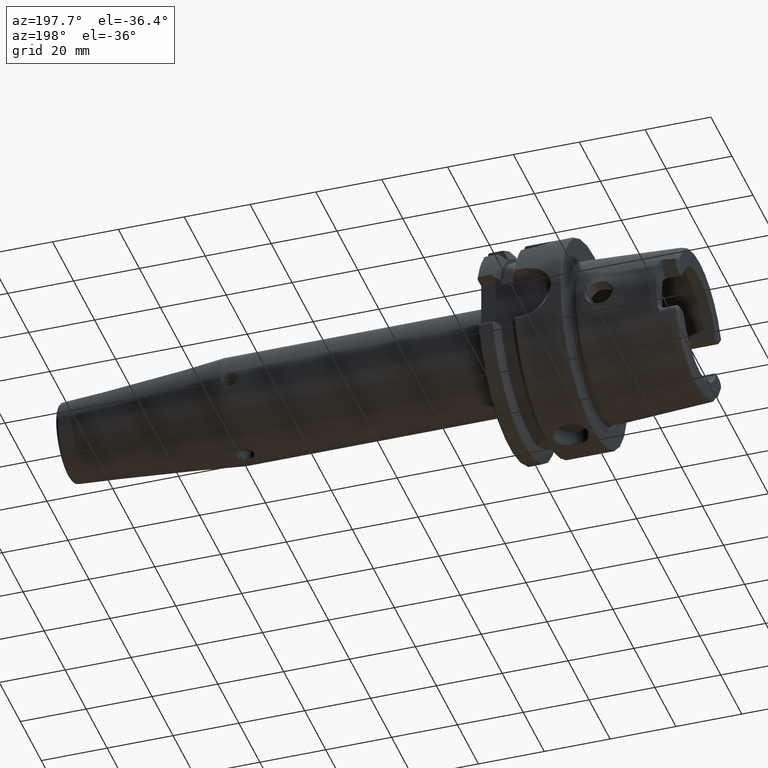
[diagram: clean part render]
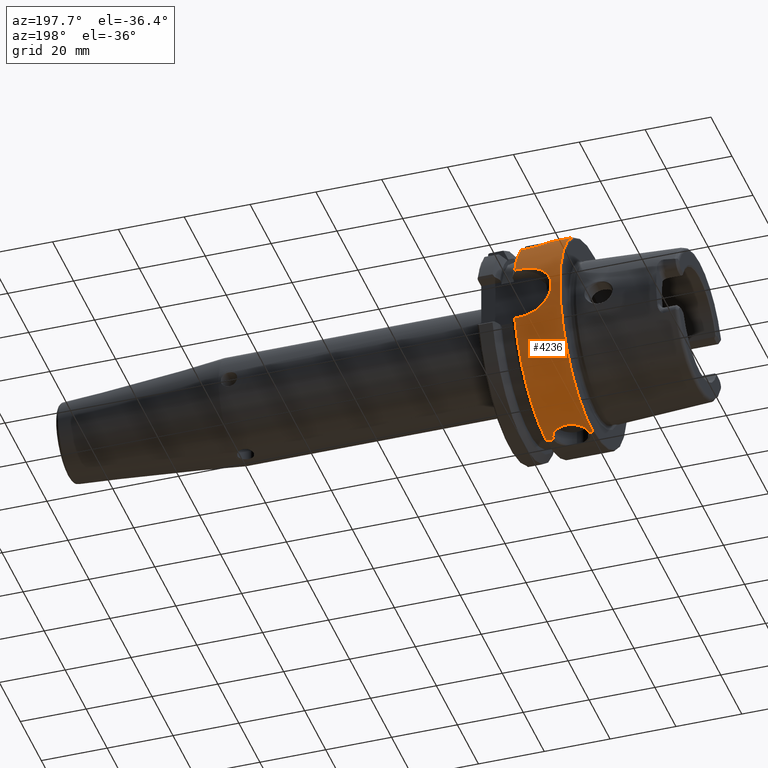
[diagram: same view with one face highlighted and labeled with its STEP entity id]
A machine part, auxiliary view. The second image highlights one B-rep face of the part: STEP entity #4236.
In plain terms, the highlighted cylindrical surface (partial cylindrical patch) has radius 31.5 mm, axis along (1, 0, 0).
Its self-contained STEP definition (entity closure, byte-faithful):
#913=DIRECTION('',(-1.E0,-1.152682623977E-12,0.E0));
#914=VECTOR('',#913,1.412250090457E1);
#915=CARTESIAN_POINT('',(1.462250090457E1,0.E0,3.15E1));
#916=LINE('',#915,#914);
#972=DIRECTION('',(-1.E0,0.E0,0.E0));
#973=VECTOR('',#972,2.122500904567E0);
#974=CARTESIAN_POINT('',(1.462250090457E1,0.E0,-3.15E1));
#975=LINE('',#974,#973);
#996=DIRECTION('',(-1.E0,-3.500340280064E-12,0.E0));
#997=VECTOR('',#996,1.E0);
#998=CARTESIAN_POINT('',(1.5E0,0.E0,-3.15E1));
#999=LINE('',#998,#997);
#1013=CARTESIAN_POINT('',(5.E-1,0.E0,0.E0));
#1014=DIRECTION('',(-1.E0,0.E0,0.E0));
#1015=DIRECTION('',(0.E0,0.E0,1.E0));
#1016=AXIS2_PLACEMENT_3D('',#1013,#1014,#1015);
#1018=CARTESIAN_POINT('',(1.25E1,0.E0,-3.15E1));
#1019=CARTESIAN_POINT('',(1.25E1,3.591179016958E-1,-3.15E1));
#1020=CARTESIAN_POINT('',(1.241877060514E1,1.049176716839E0,-3.148780969961E1));
#1021=CARTESIAN_POINT('',(1.208888151745E1,2.007789554012E0,-3.144033464909E1));
#1022=CARTESIAN_POINT('',(1.158303499725E1,2.863034778919E0,-3.137310892711E1));
#1023=CARTESIAN_POINT('',(1.090471174494E1,3.623449915998E0,-3.129357789396E1));
#1024=CARTESIAN_POINT('',(1.006459553458E1,4.261252464667E0,-3.121215533395E1));
#1025=CARTESIAN_POINT('',(9.088026015445E0,4.740243014212E0,-3.114207085875E1));
#1026=CARTESIAN_POINT('',(8.055144265708E0,5.024239826024E0,-3.109689332850E1));
#1027=CARTESIAN_POINT('',(6.991255526220E0,5.118492193282E0,-3.108133183436E1));
#1028=CARTESIAN_POINT('',(5.929304176130E0,5.021338939589E0,-3.109736870211E1));
#1029=CARTESIAN_POINT('',(4.897654838810E0,4.734729497616E0,-3.114291627253E1));
#1030=CARTESIAN_POINT('',(3.923322314250E0,4.253904907756E0,-3.121317796639E1));
#1031=CARTESIAN_POINT('',(3.081999010349E0,3.611475324829E0,-3.129499592086E1));
#1032=CARTESIAN_POINT('',(2.405524185626E0,2.847462453288E0,-3.137455446046E1));
#1033=CARTESIAN_POINT('',(1.903178736620E0,1.990202842849E0,-3.144144823364E1));
#1034=CARTESIAN_POINT('',(1.578888425808E0,1.035924841317E0,-3.148816306394E1));
#1035=CARTESIAN_POINT('',(1.5E0,3.538898695661E-1,-3.15E1));
#1036=CARTESIAN_POINT('',(1.5E0,0.E0,-3.15E1));
#1038=CARTESIAN_POINT('',(1.462250090457E1,0.E0,0.E0));
#1039=DIRECTION('',(1.E0,0.E0,0.E0));
#1040=DIRECTION('',(0.E0,0.E0,-1.E0));
#1041=AXIS2_PLACEMENT_3D('',#1038,#1039,#1040);
#1043=DIRECTION('',(1.E0,0.E0,0.E0));
#1044=VECTOR('',#1043,1.622500904567E0);
#1045=CARTESIAN_POINT('',(1.3E1,3.030257052423E1,-8.602570524226E0));
#1046=LINE('',#1045,#1044);
#1047=CARTESIAN_POINT('',(1.3E1,3.030257052423E1,-8.602570524226E0));
#1048=CARTESIAN_POINT('',(1.235541835287E1,3.030257052423E1,-8.602570524226E0));
#1049=CARTESIAN_POINT('',(1.109372968304E1,3.033423153458E1,-8.492196080456E0));
#1050=CARTESIAN_POINT('',(9.248264611222E0,3.046933517118E1,-8.000909647176E0));
#1051=CARTESIAN_POINT('',(7.555884268441E0,3.066964465669E1,-7.205952655409E0));
#1052=CARTESIAN_POINT('',(6.088763746981E0,3.090017764345E1,-6.155508171550E0));
#1053=CARTESIAN_POINT('',(4.907613818030E0,3.112281076593E1,-4.919449967846E0));
#1054=CARTESIAN_POINT('',(4.035296228860E0,3.130752418742E1,-3.569140413675E0));
#1055=CARTESIAN_POINT('',(3.467126615443E0,3.143679507039E1,-2.158791178254E0));
#1056=CARTESIAN_POINT('',(3.188348549717E0,3.150274417315E1,
-7.219689524247E-1));
#1057=CARTESIAN_POINT('',(3.188351309952E0,3.150274350794E1,7.219960352426E-1));
#1058=CARTESIAN_POINT('',(3.467133324851E0,3.143679352027E1,2.158810680109E0));
#1059=CARTESIAN_POINT('',(4.035299491244E0,3.130752347964E1,3.569145798460E0));
#1060=CARTESIAN_POINT('',(4.907619317801E0,3.112280964165E1,4.919457341111E0));
#1061=CARTESIAN_POINT('',(6.088770538561E0,3.090017648968E1,6.155513669787E0));
#1062=CARTESIAN_POINT('',(7.555887404237E0,3.066964426780E1,7.205954206590E0));
#1063=CARTESIAN_POINT('',(9.248266760131E0,3.046933495101E1,8.000910488809E0));
#1064=CARTESIAN_POINT('',(1.109373293521E1,3.033423138205E1,8.492196614850E0));
#1065=CARTESIAN_POINT('',(1.235541965801E1,3.030257052423E1,8.602570524226E0));
#1066=CARTESIAN_POINT('',(1.3E1,3.030257052423E1,8.602570524226E0));
#1068=DIRECTION('',(1.E0,0.E0,0.E0));
#1069=VECTOR('',#1068,1.622500904567E0);
#1070=CARTESIAN_POINT('',(1.3E1,3.030257052423E1,8.602570524226E0));
#1071=LINE('',#1070,#1069);
#1072=CARTESIAN_POINT('',(1.462250090457E1,0.E0,0.E0));
#1073=DIRECTION('',(1.E0,0.E0,0.E0));
#1074=DIRECTION('',(0.E0,9.619863658485E-1,2.730974769596E-1));
#1075=AXIS2_PLACEMENT_3D('',#1072,#1073,#1074);
#1077=DIRECTION('',(1.E0,0.E0,0.E0));
#1078=VECTOR('',#1077,1.622500904567E0);
#1079=CARTESIAN_POINT('',(1.3E1,2.433618704728E1,2.E1));
#1080=LINE('',#1079,#1078);
#1081=CARTESIAN_POINT('',(5.888286096344E0,2.E1,2.433618704728E1));
#1082=CARTESIAN_POINT('',(5.979841110901E0,2.021624479285E1,2.415847244274E1));
#1083=CARTESIAN_POINT('',(6.178964055433E0,2.063505528873E1,2.380463264103E1));
#1084=CARTESIAN_POINT('',(6.529290349012E0,2.122336114799E1,2.328123619400E1));
#1085=CARTESIAN_POINT('',(6.934185786704E0,2.177041926319E1,2.277004743860E1));
#1086=CARTESIAN_POINT('',(7.395470581921E0,2.227363444044E1,2.227755184076E1));
#1087=CARTESIAN_POINT('',(7.915511267172E0,2.273117164906E1,2.180996325233E1));
#1088=CARTESIAN_POINT('',(8.494651142790E0,2.313957745525E1,2.137559509570E1));
#1089=CARTESIAN_POINT('',(9.133373456560E0,2.349590004479E1,2.098269866103E1));
#1090=CARTESIAN_POINT('',(9.827602999986E0,2.379530983774E1,2.064193255373E1));
#1091=CARTESIAN_POINT('',(1.057250362730E1,2.403390563889E1,2.036307977068E1));
#1092=CARTESIAN_POINT('',(1.135757184338E1,2.420737036833E1,2.015610491514E1));
#1093=CARTESIAN_POINT('',(1.217313527813E1,2.431273139834E1,2.002859294578E1));
#1094=CARTESIAN_POINT('',(1.272260838370E1,2.433618704728E1,2.E1));
#1095=CARTESIAN_POINT('',(1.3E1,2.433618704728E1,2.E1));
#1097=DIRECTION('',(1.E0,0.E0,0.E0));
#1098=VECTOR('',#1097,8.734214808223E0);
#1099=CARTESIAN_POINT('',(5.888286096344E0,2.E1,2.433618704728E1));
#1100=LINE('',#1099,#1098);
#1101=CARTESIAN_POINT('',(1.462250090457E1,0.E0,0.E0));
#1102=DIRECTION('',(1.E0,0.E0,0.E0));
#1103=DIRECTION('',(0.E0,6.349206349206E-1,7.725773665802E-1));
#1104=AXIS2_PLACEMENT_3D('',#1101,#1102,#1103);
#2831=CARTESIAN_POINT('',(5.888286096344E0,2.E1,2.433618704728E1));
#2832=CARTESIAN_POINT('',(1.462250090457E1,2.E1,2.433618704728E1));
#2833=VERTEX_POINT('',#2831);
#2834=VERTEX_POINT('',#2832);
#2835=CARTESIAN_POINT('',(1.3E1,2.433618704728E1,2.E1));
#2836=CARTESIAN_POINT('',(1.462250090457E1,2.433618704728E1,2.E1));
#2837=VERTEX_POINT('',#2835);
#2838=VERTEX_POINT('',#2836);
#2851=CARTESIAN_POINT('',(1.462250090457E1,0.E0,3.15E1));
#2852=VERTEX_POINT('',#2851);
#2994=VERTEX_POINT('',#1018);
#2995=VERTEX_POINT('',#1036);
#3004=CARTESIAN_POINT('',(1.462250090457E1,0.E0,-3.15E1));
#3005=VERTEX_POINT('',#3004);
#3051=CARTESIAN_POINT('',(1.3E1,3.030257052423E1,8.602570524226E0));
#3052=CARTESIAN_POINT('',(1.462250090457E1,3.030257052423E1,8.602570524226E0));
#3053=VERTEX_POINT('',#3051);
#3054=VERTEX_POINT('',#3052);
#3055=VERTEX_POINT('',#1047);
#3056=CARTESIAN_POINT('',(1.462250090457E1,3.030257052423E1,-8.602570524226E0));
#3057=VERTEX_POINT('',#3056);
#3076=CARTESIAN_POINT('',(5.E-1,0.E0,3.15E1));
#3077=CARTESIAN_POINT('',(5.E-1,0.E0,-3.15E1));
#3078=VERTEX_POINT('',#3076);
#3079=VERTEX_POINT('',#3077);
#4205=CARTESIAN_POINT('',(0.E0,0.E0,0.E0));
#4206=DIRECTION('',(1.E0,0.E0,0.E0));
#4207=DIRECTION('',(0.E0,0.E0,1.E0));
#4208=AXIS2_PLACEMENT_3D('',#4205,#4206,#4207);
#4209=CYLINDRICAL_SURFACE('',#4208,3.15E1);
#4211=ORIENTED_EDGE('',*,*,#4210,.T.);
#4212=ORIENTED_EDGE('',*,*,#4169,.F.);
#4214=ORIENTED_EDGE('',*,*,#4213,.F.);
#4215=ORIENTED_EDGE('',*,*,#4165,.F.);
#4217=ORIENTED_EDGE('',*,*,#4216,.T.);
#4218=ORIENTED_EDGE('',*,*,#4179,.F.);
#4220=ORIENTED_EDGE('',*,*,#4219,.T.);
#4222=ORIENTED_EDGE('',*,*,#4221,.T.);
#4224=ORIENTED_EDGE('',*,*,#4223,.T.);
#4226=ORIENTED_EDGE('',*,*,#4225,.F.);
#4228=ORIENTED_EDGE('',*,*,#4227,.F.);
#4230=ORIENTED_EDGE('',*,*,#4229,.T.);
#4232=ORIENTED_EDGE('',*,*,#4231,.T.);
#4233=ORIENTED_EDGE('',*,*,#4149,.T.);
#4234=EDGE_LOOP('',(#4211,#4212,#4214,#4215,#4217,#4218,#4220,#4222,#4224,#4226,
#4228,#4230,#4232,#4233));
#4235=FACE_OUTER_BOUND('',#4234,.F.);
#4236=ADVANCED_FACE('',(#4235),#4209,.T.);
#1017=CIRCLE('',#1016,3.15E1);
#1037=B_SPLINE_CURVE_WITH_KNOTS('',3,(#1018,#1019,#1020,#1021,#1022,#1023,#1024,
#1025,#1026,#1027,#1028,#1029,#1030,#1031,#1032,#1033,#1034,#1035,#1036),
.UNSPECIFIED.,.F.,.F.,(4,1,1,1,1,1,1,1,1,1,1,1,1,1,1,1,4),(0.E0,6.25E-2,1.25E-1,
1.875E-1,2.5E-1,3.125E-1,3.75E-1,4.375E-1,5.E-1,5.625E-1,6.25E-1,6.875E-1,
7.5E-1,8.125E-1,8.75E-1,9.375E-1,1.E0),.UNSPECIFIED.);
#1042=CIRCLE('',#1041,3.15E1);
#1067=B_SPLINE_CURVE_WITH_KNOTS('',3,(#1047,#1048,#1049,#1050,#1051,#1052,#1053,
#1054,#1055,#1056,#1057,#1058,#1059,#1060,#1061,#1062,#1063,#1064,#1065,#1066),
.UNSPECIFIED.,.F.,.F.,(4,1,1,1,1,1,1,1,1,1,1,1,1,1,1,1,1,4),(0.E0,
5.882352941176E-2,1.176470588235E-1,1.764705882353E-1,2.352941176471E-1,
2.941176470588E-1,3.529411764706E-1,4.117647058824E-1,4.705882352941E-1,
5.294117647059E-1,5.882352941176E-1,6.470588235294E-1,7.058823529412E-1,
7.647058823529E-1,8.235294117647E-1,8.823529411765E-1,9.411764705882E-1,1.E0),
.UNSPECIFIED.);
#1076=CIRCLE('',#1075,3.15E1);
#1096=B_SPLINE_CURVE_WITH_KNOTS('',3,(#1081,#1082,#1083,#1084,#1085,#1086,#1087,
#1088,#1089,#1090,#1091,#1092,#1093,#1094,#1095),.UNSPECIFIED.,.F.,.F.,(4,1,1,1,
1,1,1,1,1,1,1,1,4),(0.E0,8.333333333333E-2,1.666666666667E-1,2.5E-1,
3.333333333333E-1,4.166666666667E-1,5.E-1,5.833333333333E-1,6.666666666667E-1,
7.5E-1,8.333333333333E-1,9.166666666667E-1,1.E0),.UNSPECIFIED.);
#1105=CIRCLE('',#1104,3.15E1);
#4149=EDGE_CURVE('',#2852,#3078,#916,.T.);
#4165=EDGE_CURVE('',#3005,#2994,#975,.T.);
#4169=EDGE_CURVE('',#2995,#3079,#999,.T.);
#4179=EDGE_CURVE('',#3055,#3057,#1046,.T.);
#4210=EDGE_CURVE('',#3078,#3079,#1017,.T.);
#4213=EDGE_CURVE('',#2994,#2995,#1037,.T.);
#4216=EDGE_CURVE('',#3005,#3057,#1042,.T.);
#4219=EDGE_CURVE('',#3055,#3053,#1067,.T.);
#4221=EDGE_CURVE('',#3053,#3054,#1071,.T.);
#4223=EDGE_CURVE('',#3054,#2838,#1076,.T.);
#4225=EDGE_CURVE('',#2837,#2838,#1080,.T.);
#4227=EDGE_CURVE('',#2833,#2837,#1096,.T.);
#4229=EDGE_CURVE('',#2833,#2834,#1100,.T.);
#4231=EDGE_CURVE('',#2834,#2852,#1105,.T.);